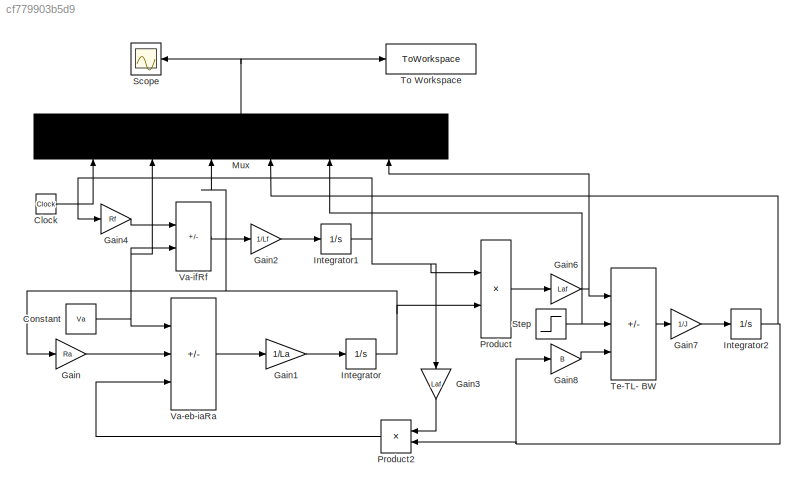
MODEL slx_cf779903b5d9
KIND model
CONFIG AbsTol = auto
CONFIG EnableMultiTasking = off
CONFIG FixedStep = auto
CONFIG MaxStep = auto
CONFIG MinStep = auto
CONFIG RelTol = 1e-3
CONFIG SampleTimeConstraint = Unconstrained
CONFIG Solver = VariableStepAuto
CONFIG SolverName = VariableStepAuto
CONFIG StartTime = 0.0
CONFIG StopTime = 10
BLOCK [Clock] Clock
BLOCK [Constant] Constant
  SampleTime = 1e-3
  Value = Va
BLOCK [Gain] Gain
  Gain = Ra
BLOCK [Gain] Gain1
  Gain = 1/La
BLOCK [Gain] Gain2
  Gain = 1/Lf
BLOCK [Gain] Gain3
  Gain = Laf
  NameLocation = left
BLOCK [Gain] Gain4
  Gain = Rf
BLOCK [Gain] Gain6
  Gain = Laf
BLOCK [Gain] Gain7
  Gain = 1/J
BLOCK [Gain] Gain8
  Gain = B
BLOCK [Integrator] Integrator
  Ports = [1, 1]
BLOCK [Integrator] Integrator1
  Ports = [1, 1]
BLOCK [Integrator] Integrator2
  Ports = [1, 1]
BLOCK [Mux] Mux
  DisplayOption = bar
  Inputs = 6
  NameLocation = right
  Ports = [6, 1]
BLOCK [Product] Product
  Ports = [2, 1]
BLOCK [Product] Product2
  Ports = [2, 1]
BLOCK [Scope] Scope
  Floating = off
  NumInputPorts = 1
  Ports = [1]
  ScopeSpecificationString = Simulink.scopes.TimeScopeBlockCfg('CurrentConfiguration', extmgr.ConfigurationSet(extmgr.Configuration('Core','General UI',true),extmgr.Configuration('Core','Source UI',true),extmgr.Configuration('Sources','WiredSimulink',true),extmgr.Configuration('Visuals','Time Domain',true,'SerializedDisplays',{struct('MinYLimReal','-80.42105','MaxYLimReal','448.49946','YLabelReal','','MinYLimMag','0.00000','M...<+1527ch>
BLOCK [Step] Step
  After = 8*P
  SampleTime = 0
  Time = 3
BLOCK [Sum] Te-TL- BW
  IconShape = rectangular
  Inputs = +--
  Ports = [3, 1]
BLOCK [ToWorkspace] To Workspace
  FixptAsFi = on
  MaxDataPoints = inf
  Ports = [1]
  SampleTime = -1
  Save2DSignal = 2-D array (concatenate along first dimension)
  SaveFormat = Structure
  VariableName = y
BLOCK [Sum] Va-eb-iaRa
  IconShape = rectangular
  Inputs = +--
  Ports = [3, 1]
BLOCK [Sum] Va-ifRf
  IconShape = rectangular
  Inputs = -+
  Ports = [2, 1]
LINE Clock:1 -> Mux:1
NET Constant:1 -> Mux:2, Va-eb-iaRa:1, Va-ifRf:2
LINE Gain1:1 -> Integrator:1
LINE Gain2:1 -> Integrator1:1
LINE Gain3:1 -> Product2:1
LINE Gain4:1 -> Va-ifRf:1
NET Gain6:1 -> Mux:6, Te-TL- BW:1
LINE Gain7:1 -> Integrator2:1
LINE Gain8:1 -> Te-TL- BW:3
LINE Gain:1 -> Va-eb-iaRa:2
NET Integrator1:1 -> Gain3:1, Gain4:1, Product:1
NET Integrator2:1 -> Gain8:1, Mux:4, Product2:2
NET Integrator:1 -> Gain:1, Mux:3, Product:2
NET Mux:1 -> Scope:1, To Workspace:1
LINE Product2:1 -> Va-eb-iaRa:3
LINE Product:1 -> Gain6:1
NET Step:1 -> Mux:5, Te-TL- BW:2
LINE Te-TL- BW:1 -> Gain7:1
LINE Va-eb-iaRa:1 -> Gain1:1
LINE Va-ifRf:1 -> Gain2:1
note: NET lines group one-source signal fan-out (src -> all destinations, sorted); 1:1 wires keep LINE
